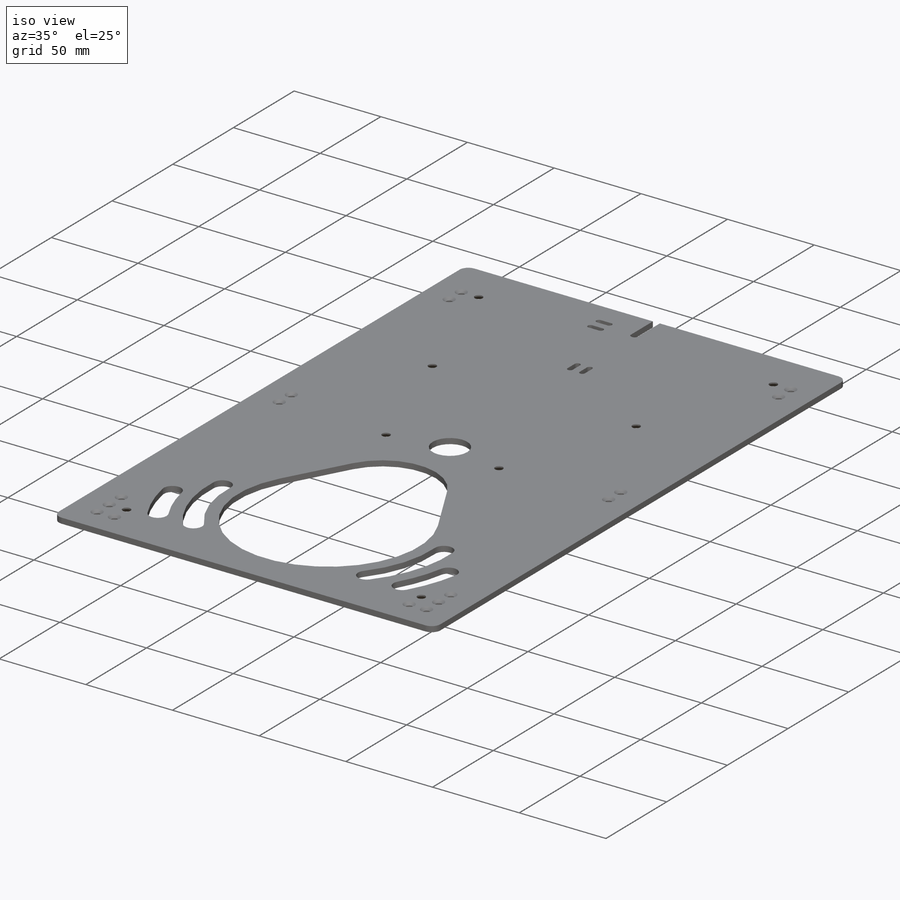
[diagram: iso view]
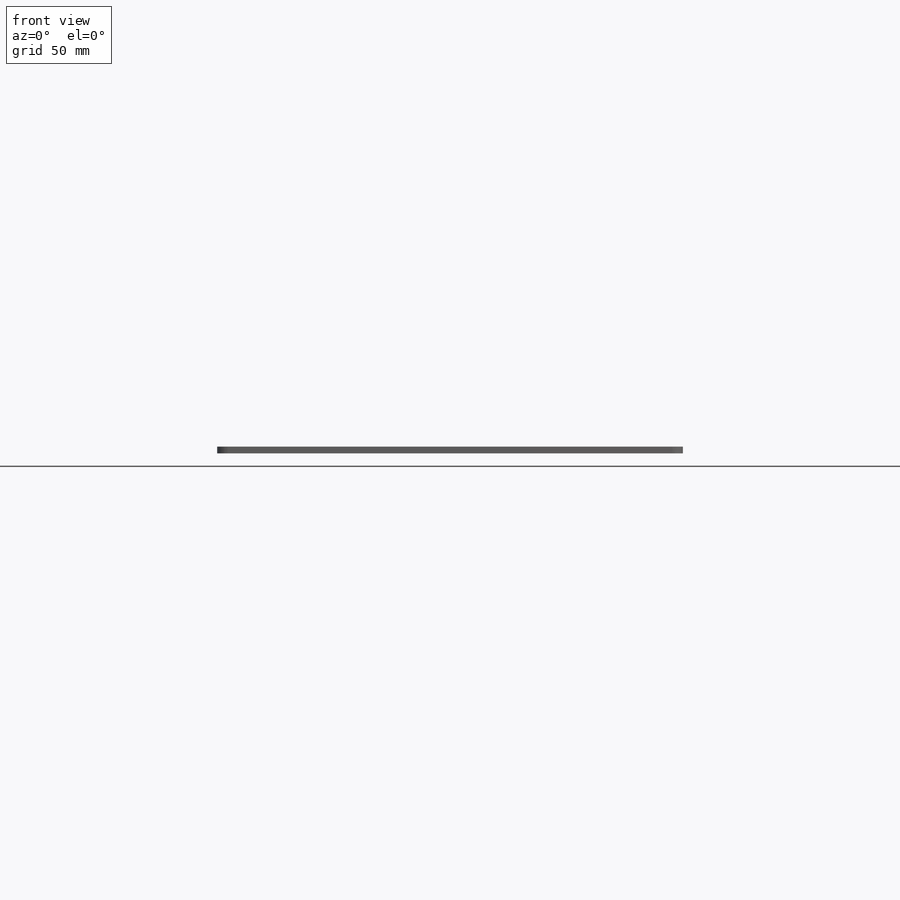
[diagram: front view]
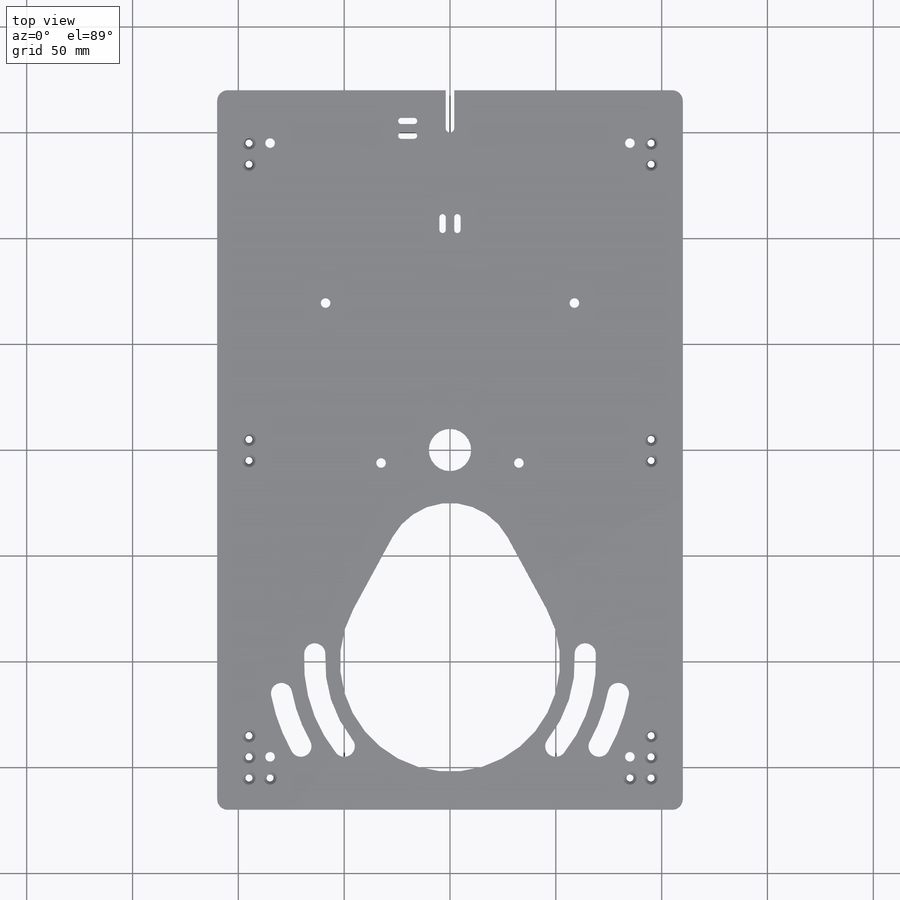
[diagram: top view]
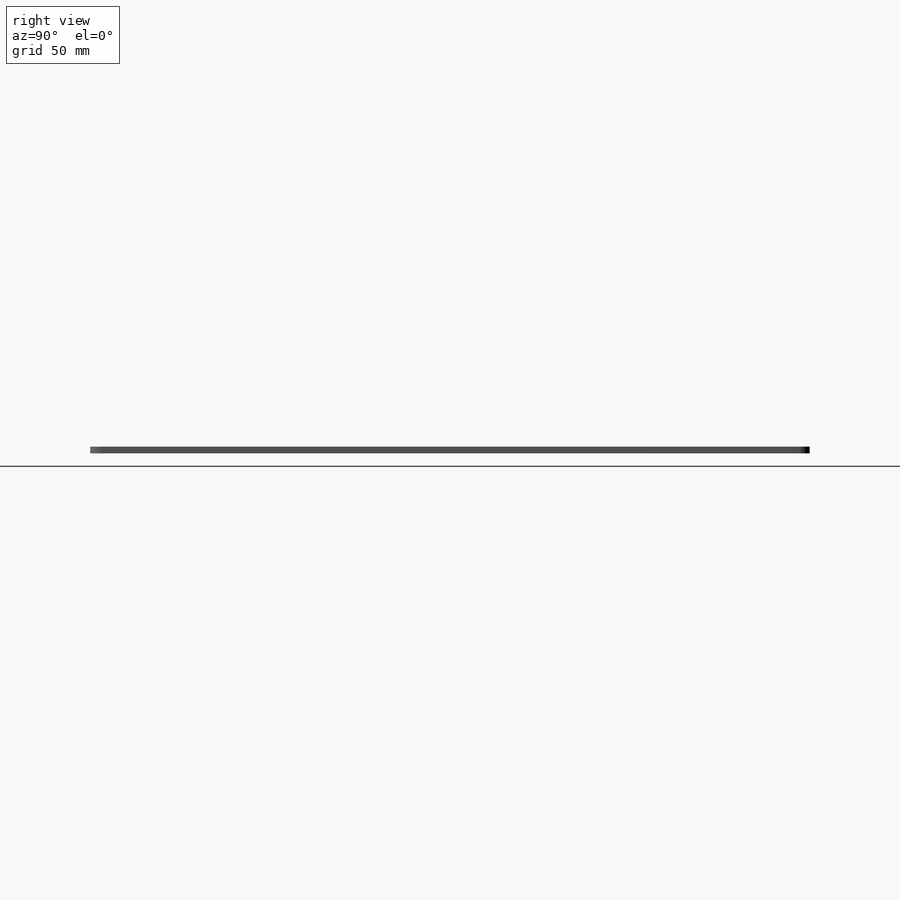
[diagram: right view]
SOLIDWORKS PART (.sldprt)
format: sldprt  version: not decoded by parser v0  size: 449,536 bytes
history: native  units: mm
features: sketch x7, mirror x3, cut_extrude x2, hole x2, material x1, extrude x1, fillet x1 (+11 scaffold rows collapsed)
feature tree (28):
  scaffold x11  (default folders/planes/origin — collapsed)
  material  "Acrylic (Medium-high impact)"
  sketch  "Sketch1"  dims[D1=340.0mm D2=220.0mm]
  extrude  "Boss-Extrude1"  Depth=3.175mm
  fillet  "Fillet1"  Radius=5mm
  sketch  "Sketch2"  dims[c1.D1=52.0mm c1.D7=20.0mm c1.D8=2.0mm c1.D10=1.5mm c1.D14=~0.406778mm c1.D2=10.0mm c1.D3=60.0mm c1.D4=75.0mm c1.D5=64.0mm c1.D6=50.0mm c1.D9=18.0mm c1.D11=6.0mm c1.D12=2.0mm c1.D13=60.0mm c2.D14=2.0mm c2.D15=20.0mm]
  cut_extrude  "Cut-Extrude1"  [1 undecoded]
  hole  "CSK for M3 Flat Head Machine Screw1"  Diameter=3.4mm Depth=3.175mm
  sketch  "Sketch4"  dims[c1.D1=15.0mm c1.D2=15.0mm c1.D3=10.0mm c1.D4=20.0mm c1.D5=10.0mm c1.D6=40.0mm c1.D7=10.0mm c2.D6=150.0mm c2.D7=10.0mm c2.D8=130.0mm c3.D6=150.0mm c3.D9=10.0mm]
  sketch  "Sketch3"  dims[hole-wizard template sketch: 59 standard entries collapsed; hole parameters above]
  mirror  "Mirror3"
  hole  "CSK for M4 Flat Head Machine Screw1"  Diameter=4.5mm Depth=3.175mm
  sketch  "Sketch6"  dims[D1=80.0mm D2=80.0mm D3=25.0mm D4=25.0mm D5=25.0mm D6=25.0mm]
  sketch  "Sketch5"  dims[hole-wizard template sketch: 55 standard entries collapsed; hole parameters kept: c17.Thru Hole Depth=3.175mm c17.Near C'Sink Dia.=9.4mm c17.D4=~3.666174mm c17.Near C'Sink Angle=90.0deg]
  mirror  "Mirror4"
  sketch  "Sketch7"  dims[c1.D1=5.0mm c1.D2=5.0mm c1.D3=~53.728187mm c1.D4=~68.817342mm c2.D2=20.0mm c2.D3=15.0mm c2.D4=45.0mm c2.D5=~22.117355mm c2.D1=30.0mm c3.D3=50.0mm c3.D4=20.0mm c4.D3=7.0mm c4.D4=7.0mm c4.D5=~16.344755mm c5.D5=40.0deg c5.D6=55.0mm]
  cut_extrude  "Cut-Extrude2"  [1 undecoded]
  mirror  "Mirror5"
decode coverage: 11 of 16 modeling features carry decoded parameters
note: ~ marks probable driven/reference dimensions
note: 2 parameter values undecoded
note: suppression state not decoded; provenance and decode notes live in map.json
